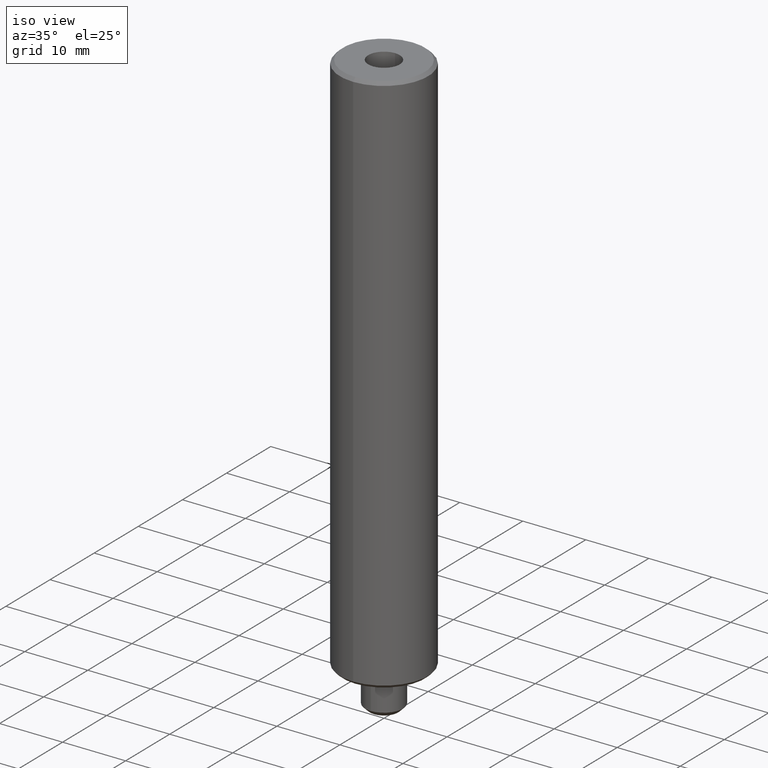
[diagram: clean part render]
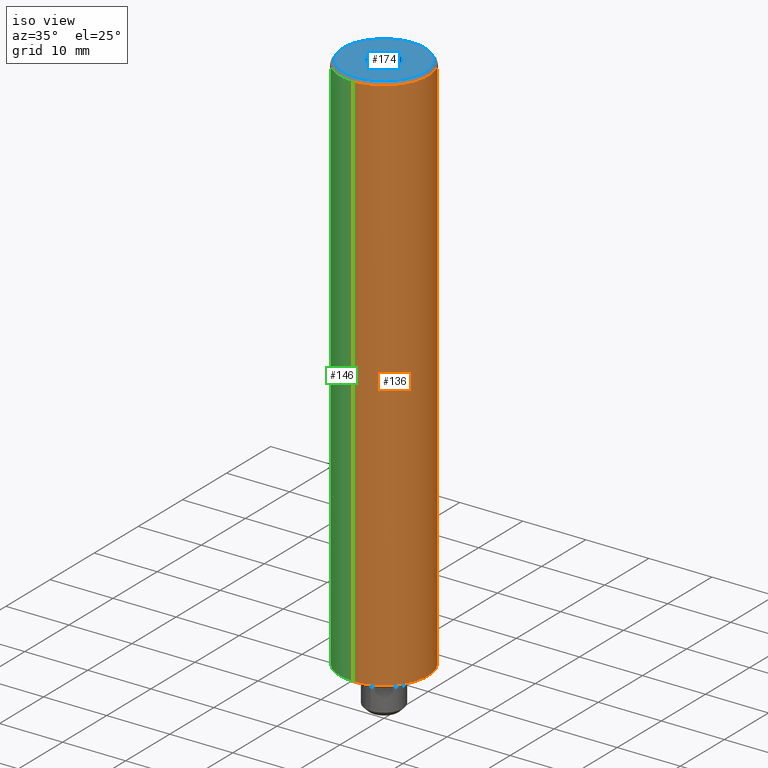
[diagram: same view with three faces highlighted in distinct colors, each labeled with its STEP entity id]
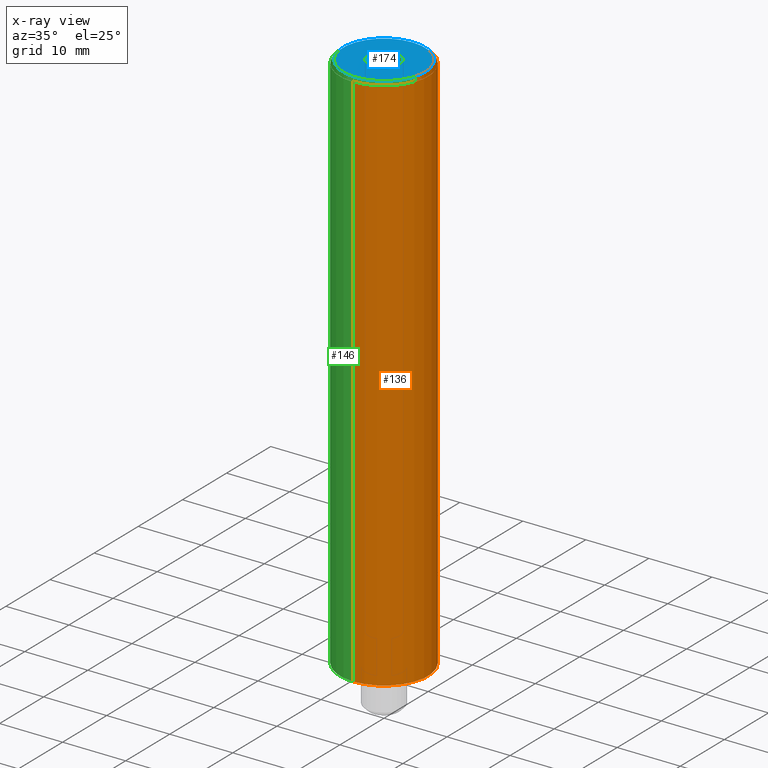
[diagram: x-ray of the same camera — body ghosted, the three highlighted faces saturated]
A machine part, iso view with three faces highlighted in distinct colors.
The next image is the same camera in x-ray (body ghosted, the three faces saturated) — at least one of them is partly hidden behind the body in this view.
Their STEP definitions:

[orange] entity #136 — the highlighted cylindrical surface (partial cylindrical patch) has radius 7 mm, axis along (-0, -0, 1).
#136=ADVANCED_FACE('NONE',(#317),#318,.T.);
#154=EDGE_CURVE('NONE',#212,#254,#339,.T.);
#176=VERTEX_POINT('NONE',#366);
#202=EDGE_CURVE('NONE',#238,#254,#394,.T.);
#204=EDGE_CURVE('NONE',#176,#238,#396,.T.);
#212=VERTEX_POINT('NONE',#405);
#226=EDGE_CURVE('NONE',#212,#176,#421,.T.);
#238=VERTEX_POINT('NONE',#434);
#254=VERTEX_POINT('NONE',#451);
#317=FACE_OUTER_BOUND('',#517,.T.);
#318=CYLINDRICAL_SURFACE('',#518,6.99999999999999);
#339=LINE('',#544,#545);
#366=CARTESIAN_POINT('',(0.0,6.99999999999999,0.499999999999994));
#394=CIRCLE('',#615,6.99999999999999);
#396=LINE('',#618,#619);
#405=CARTESIAN_POINT('',(-8.57224447675663E-016,-6.99999999999999,0.499999999999994));
#421=CIRCLE('',#654,6.99999999999999);
#434=CARTESIAN_POINT('',(0.0,6.99999999999999,86.5));
#451=CARTESIAN_POINT('',(-8.57224447675663E-016,-6.99999999999999,86.5));
#517=EDGE_LOOP('',(#757,#758,#759,#760));
#518=AXIS2_PLACEMENT_3D('',#761,#762,#763);
#544=CARTESIAN_POINT('',(-8.57224447675663E-016,-6.99999999999999,44.3839792060492));
#545=VECTOR('',#795,1000.0);
#615=AXIS2_PLACEMENT_3D('',#853,#854,#855);
#618=CARTESIAN_POINT('',(0.0,6.99999999999999,44.3839792060492));
#619=VECTOR('',#856,1000.0);
#654=AXIS2_PLACEMENT_3D('',#893,#894,#895);
#757=ORIENTED_EDGE('',*,*,#154,.F.);
#758=ORIENTED_EDGE('',*,*,#226,.T.);
#759=ORIENTED_EDGE('',*,*,#204,.T.);
#760=ORIENTED_EDGE('',*,*,#202,.T.);
#761=CARTESIAN_POINT('',(0.0,0.0,44.3839792060492));
#762=DIRECTION('',(-0.0,-0.0,1.0));
#763=DIRECTION('',(0.0,1.0,0.0));
#795=DIRECTION('',(0.0,-0.0,1.0));
#853=CARTESIAN_POINT('',(0.0,0.0,86.5));
#854=DIRECTION('',(0.0,0.0,-1.0));
#855=DIRECTION('',(0.0,-1.0,0.0));
#856=DIRECTION('',(0.0,-0.0,1.0));
#893=CARTESIAN_POINT('',(0.0,0.0,0.499999999999994));
#894=DIRECTION('',(0.0,-0.0,1.0));
#895=DIRECTION('',(0.0,1.0,0.0));

[blue] entity #174 — the highlighted planar face has unit normal (0, 0, -1).
#108=EDGE_CURVE('NONE',#128,#138,#284,.T.);
#116=EDGE_CURVE('NONE',#156,#186,#294,.T.);
#128=VERTEX_POINT('NONE',#309);
#138=VERTEX_POINT('NONE',#320);
#156=VERTEX_POINT('NONE',#341);
#174=ADVANCED_FACE('NONE',(#362,#363),#364,.F.);
#184=EDGE_CURVE('NONE',#186,#156,#375,.T.);
#186=VERTEX_POINT('NONE',#377);
#192=EDGE_CURVE('NONE',#138,#128,#384,.T.);
#284=CIRCLE('',#474,6.49999999999999);
#294=CIRCLE('',#486,2.5);
#309=CARTESIAN_POINT('',(-8.26609288830104E-016,6.49999999999999,87.0));
#320=CARTESIAN_POINT('',(0.0,-6.49999999999999,87.0));
#341=CARTESIAN_POINT('',(-3.06151588455594E-016,-2.5,87.0));
#362=FACE_OUTER_BOUND('',#572,.T.);
#363=FACE_BOUND('',#573,.T.);
#364=PLANE('',#574);
#375=CIRCLE('',#589,2.5);
#377=CARTESIAN_POINT('',(0.0,2.5,87.0));
#384=CIRCLE('',#599,6.49999999999999);
#474=AXIS2_PLACEMENT_3D('',#706,#707,#708);
#486=AXIS2_PLACEMENT_3D('',#728,#729,#730);
#572=EDGE_LOOP('',(#815,#816));
#573=EDGE_LOOP('',(#817,#818));
#574=AXIS2_PLACEMENT_3D('',#819,#820,#821);
#589=AXIS2_PLACEMENT_3D('',#834,#835,#836);
#599=AXIS2_PLACEMENT_3D('',#845,#846,#847);
#706=CARTESIAN_POINT('',(0.0,0.0,87.0));
#707=DIRECTION('',(-0.0,0.0,1.0));
#708=DIRECTION('',(0.0,-1.0,0.0));
#728=CARTESIAN_POINT('',(0.0,0.0,87.0));
#729=DIRECTION('',(0.0,-0.0,1.0));
#730=DIRECTION('',(0.0,1.0,0.0));
#815=ORIENTED_EDGE('',*,*,#192,.T.);
#816=ORIENTED_EDGE('',*,*,#108,.T.);
#817=ORIENTED_EDGE('',*,*,#184,.F.);
#818=ORIENTED_EDGE('',*,*,#116,.F.);
#819=CARTESIAN_POINT('',(-6.99999999999999,0.0,87.0));
#820=DIRECTION('',(0.0,0.0,-1.0));
#821=DIRECTION('',(-1.0,0.0,0.0));
#834=CARTESIAN_POINT('',(0.0,0.0,87.0));
#835=DIRECTION('',(0.0,-0.0,1.0));
#836=DIRECTION('',(0.0,1.0,0.0));
#845=CARTESIAN_POINT('',(0.0,0.0,87.0));
#846=DIRECTION('',(-0.0,0.0,1.0));
#847=DIRECTION('',(0.0,-1.0,0.0));

[green] entity #146 — the highlighted cylindrical surface (partial cylindrical patch) has radius 7 mm, axis along (-0, -0, 1).
#122=EDGE_CURVE('NONE',#254,#238,#302,.T.);
#146=ADVANCED_FACE('NONE',(#328),#329,.T.);
#154=EDGE_CURVE('NONE',#212,#254,#339,.T.);
#176=VERTEX_POINT('NONE',#366);
#204=EDGE_CURVE('NONE',#176,#238,#396,.T.);
#212=VERTEX_POINT('NONE',#405);
#230=EDGE_CURVE('NONE',#176,#212,#425,.T.);
#238=VERTEX_POINT('NONE',#434);
#254=VERTEX_POINT('NONE',#451);
#302=CIRCLE('',#497,6.99999999999999);
#328=FACE_OUTER_BOUND('',#532,.T.);
#329=CYLINDRICAL_SURFACE('',#533,6.99999999999999);
#339=LINE('',#544,#545);
#366=CARTESIAN_POINT('',(0.0,6.99999999999999,0.499999999999994));
#396=LINE('',#618,#619);
#405=CARTESIAN_POINT('',(-8.57224447675663E-016,-6.99999999999999,0.499999999999994));
#425=CIRCLE('',#658,6.99999999999999);
#434=CARTESIAN_POINT('',(0.0,6.99999999999999,86.5));
#451=CARTESIAN_POINT('',(-8.57224447675663E-016,-6.99999999999999,86.5));
#497=AXIS2_PLACEMENT_3D('',#740,#741,#742);
#532=EDGE_LOOP('',(#772,#773,#774,#775));
#533=AXIS2_PLACEMENT_3D('',#776,#777,#778);
#544=CARTESIAN_POINT('',(-8.57224447675663E-016,-6.99999999999999,44.3839792060492));
#545=VECTOR('',#795,1000.0);
#618=CARTESIAN_POINT('',(0.0,6.99999999999999,44.3839792060492));
#619=VECTOR('',#856,1000.0);
#658=AXIS2_PLACEMENT_3D('',#897,#898,#899);
#740=CARTESIAN_POINT('',(0.0,0.0,86.5));
#741=DIRECTION('',(0.0,0.0,-1.0));
#742=DIRECTION('',(0.0,-1.0,0.0));
#772=ORIENTED_EDGE('',*,*,#230,.T.);
#773=ORIENTED_EDGE('',*,*,#154,.T.);
#774=ORIENTED_EDGE('',*,*,#122,.T.);
#775=ORIENTED_EDGE('',*,*,#204,.F.);
#776=CARTESIAN_POINT('',(0.0,0.0,44.3839792060492));
#777=DIRECTION('',(-0.0,-0.0,1.0));
#778=DIRECTION('',(0.0,1.0,0.0));
#795=DIRECTION('',(0.0,-0.0,1.0));
#856=DIRECTION('',(0.0,-0.0,1.0));
#897=CARTESIAN_POINT('',(0.0,0.0,0.499999999999994));
#898=DIRECTION('',(0.0,-0.0,1.0));
#899=DIRECTION('',(0.0,1.0,0.0));